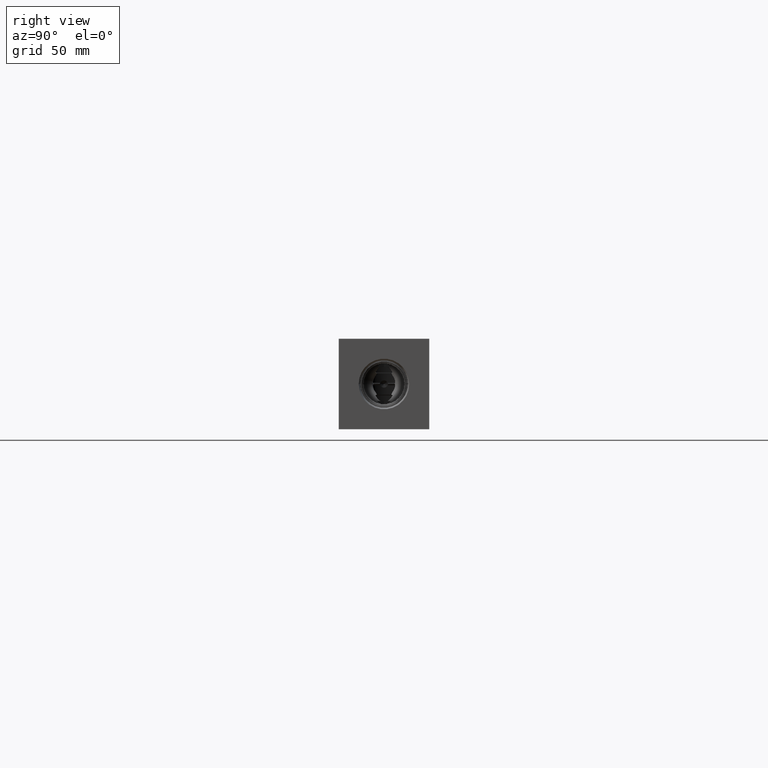
[diagram: clean part render]
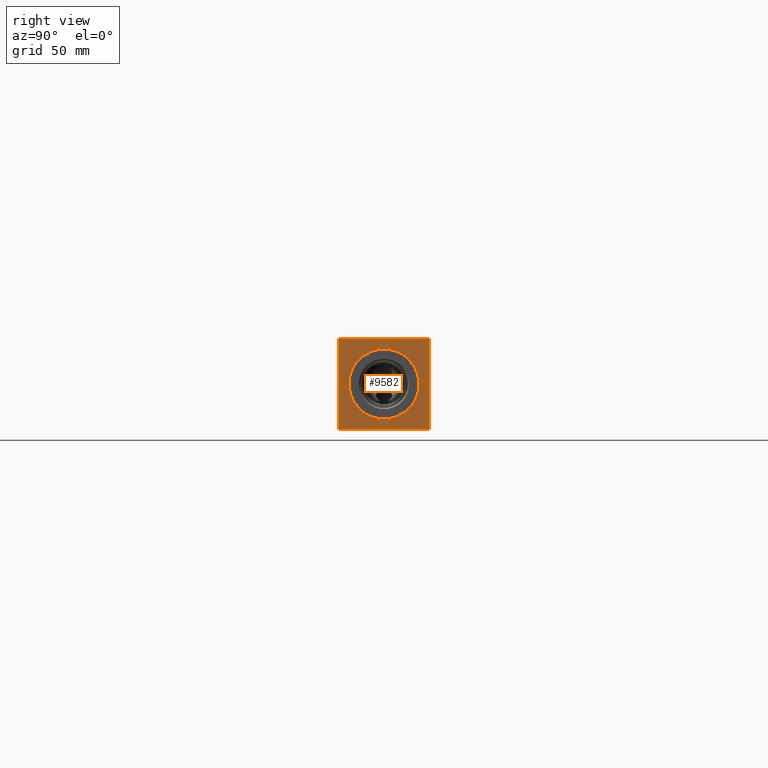
[diagram: same view with one face highlighted and labeled with its STEP entity id]
A machine part, right view. The second image highlights one B-rep face of the part: STEP entity #9582.
In plain terms, the highlighted planar face has unit normal (1, 0, 0).
Its self-contained STEP definition (entity closure, byte-faithful):
#450=CIRCLE('',#10259,24.5618);
#451=CIRCLE('',#10260,24.5618);
#534=FACE_BOUND('',#1949,.T.);
#1390=FACE_OUTER_BOUND('',#1948,.T.);
#1948=EDGE_LOOP('',(#8500,#8501,#8502,#8503));
#1949=EDGE_LOOP('',(#8504,#8505));
#2249=LINE('',#14614,#3044);
#2756=LINE('',#16851,#3551);
#2757=LINE('',#16854,#3552);
#2758=LINE('',#16855,#3553);
#3044=VECTOR('',#10732,10.);
#3551=VECTOR('',#12473,10.);
#3552=VECTOR('',#12476,10.);
#3553=VECTOR('',#12477,10.);
#3866=VERTEX_POINT('',#14611);
#3867=VERTEX_POINT('',#14613);
#4440=VERTEX_POINT('',#16781);
#4441=VERTEX_POINT('',#16782);
#4462=VERTEX_POINT('',#16849);
#4463=VERTEX_POINT('',#16853);
#4930=EDGE_CURVE('',#3866,#3867,#2249,.T.);
#5784=EDGE_CURVE('',#4440,#4441,#450,.T.);
#5785=EDGE_CURVE('',#4441,#4440,#451,.T.);
#5818=EDGE_CURVE('',#4462,#3867,#2756,.T.);
#5819=EDGE_CURVE('',#4463,#4462,#2757,.T.);
#5820=EDGE_CURVE('',#4463,#3866,#2758,.T.);
#8500=ORIENTED_EDGE('',*,*,#5819,.T.);
#8501=ORIENTED_EDGE('',*,*,#5818,.T.);
#8502=ORIENTED_EDGE('',*,*,#4930,.F.);
#8503=ORIENTED_EDGE('',*,*,#5820,.F.);
#8504=ORIENTED_EDGE('',*,*,#5784,.T.);
#8505=ORIENTED_EDGE('',*,*,#5785,.T.);
#8782=PLANE('',#10292);
#9582=ADVANCED_FACE('',(#1390,#534),#8782,.T.);
#10259=AXIS2_PLACEMENT_3D('',#16783,#12393,#12394);
#10260=AXIS2_PLACEMENT_3D('',#16784,#12395,#12396);
#10292=AXIS2_PLACEMENT_3D('',#16852,#12474,#12475);
#10732=DIRECTION('',(0.,1.,0.));
#12393=DIRECTION('center_axis',(-1.,0.,0.));
#12394=DIRECTION('ref_axis',(0.,1.,0.));
#12395=DIRECTION('center_axis',(-1.,0.,0.));
#12396=DIRECTION('ref_axis',(0.,1.,0.));
#12473=DIRECTION('',(0.,0.,1.));
#12474=DIRECTION('center_axis',(1.,0.,0.));
#12475=DIRECTION('ref_axis',(0.,1.,0.));
#12476=DIRECTION('',(0.,1.,0.));
#12477=DIRECTION('',(0.,0.,1.));
#14611=CARTESIAN_POINT('',(504.825,0.,63.5));
#14613=CARTESIAN_POINT('',(504.825,63.5,63.5));
#14614=CARTESIAN_POINT('',(504.825,0.,63.5));
#16781=CARTESIAN_POINT('',(504.825,56.3118,31.75));
#16782=CARTESIAN_POINT('',(504.825,7.1882,31.75));
#16783=CARTESIAN_POINT('Origin',(504.825,31.75,31.75));
#16784=CARTESIAN_POINT('Origin',(504.825,31.75,31.75));
#16849=CARTESIAN_POINT('',(504.825,63.5,0.));
#16851=CARTESIAN_POINT('',(504.825,63.5,0.));
#16852=CARTESIAN_POINT('Origin',(504.825,0.,0.));
#16853=CARTESIAN_POINT('',(504.825,0.,0.));
#16854=CARTESIAN_POINT('',(504.825,0.,0.));
#16855=CARTESIAN_POINT('',(504.825,0.,0.));